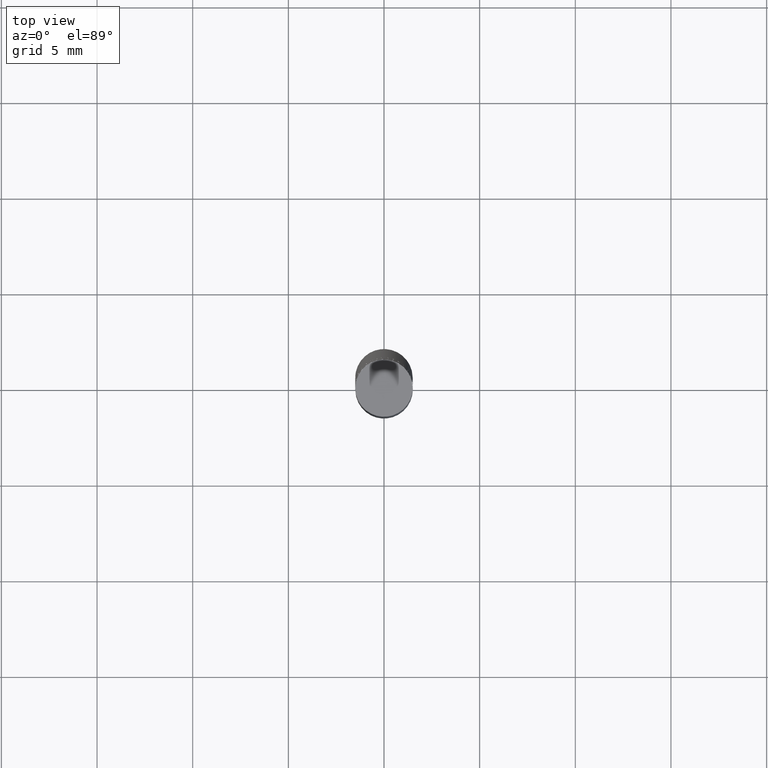
[diagram: clean part render]
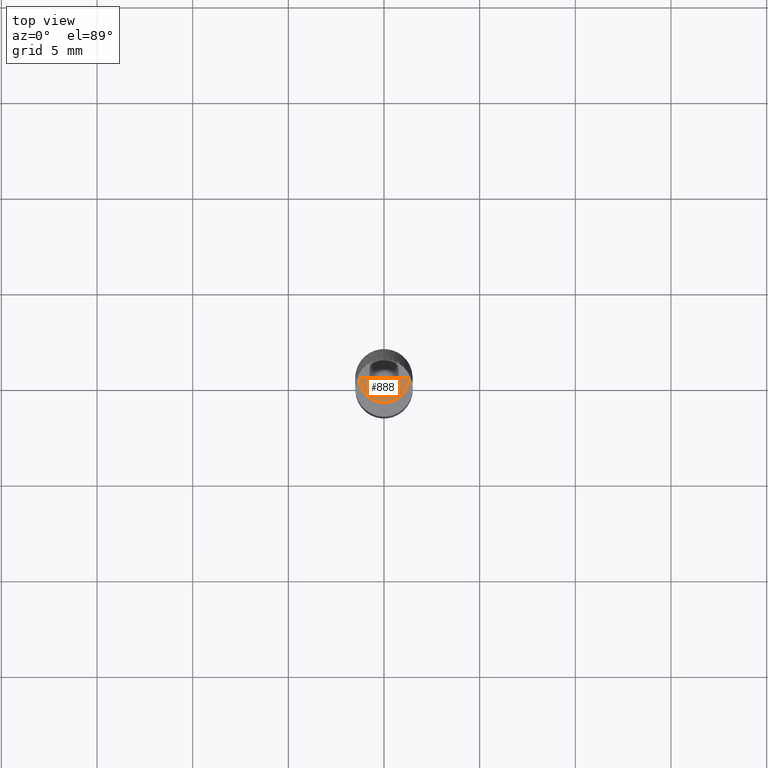
[diagram: same view with one face highlighted and labeled with its STEP entity id]
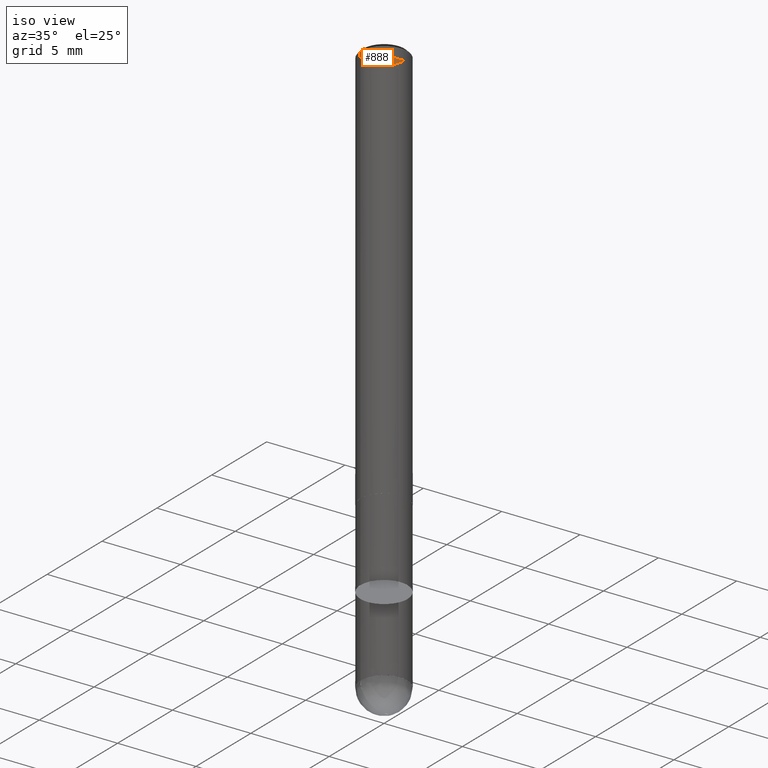
[diagram: same view with one face highlighted and labeled with its STEP entity id]
A machine part, top view. The second image highlights one B-rep face of the part: STEP entity #888.
A second angle (iso view) of the same face is appended — the face is thin or edge-on in the first view.
In plain terms, the highlighted face is a freeform B-spline surface patch.
Its self-contained STEP definition (entity closure, byte-faithful):
#576=CARTESIAN_POINT('',(1.3,0.0,26.0));
#580=CARTESIAN_POINT('',(-1.3,0.0,26.0));
#581=CARTESIAN_POINT('',(0.0,0.0,26.0));
#588=CARTESIAN_POINT('',(-1.3,-1.3,26.0));
#589=CARTESIAN_POINT('',(0.0,-1.3,26.0));
#590=CARTESIAN_POINT('',(1.3,-1.3,26.0));
#873=(
BOUNDED_SURFACE()
B_SPLINE_SURFACE(1,2,(
(#580,#588,#589,#590,#576),
(#581,#581,#581,#581,#581)
), .UNSPECIFIED.,.F.,.F.,.F.)
B_SPLINE_SURFACE_WITH_KNOTS((2,2),(3,2,3),(
0.0,1.0),(
0.0,0.5,1.0), .UNSPECIFIED.)
GEOMETRIC_REPRESENTATION_ITEM()
RATIONAL_B_SPLINE_SURFACE(((1.0,0.707106781187,1.0,0.707106781187,1.0),
(1.0,0.707106781187,1.0,0.707106781187,1.0)
))
REPRESENTATION_ITEM('')
SURFACE()
);
#874=(
BOUNDED_CURVE()
B_SPLINE_CURVE(2,(#576,#590,#589,#588,#580),.UNSPECIFIED.,.F.,.F.)
B_SPLINE_CURVE_WITH_KNOTS((3,2,3),
(0.0,0.5,1.0),.UNSPECIFIED.)
CURVE()
GEOMETRIC_REPRESENTATION_ITEM()
RATIONAL_B_SPLINE_CURVE((1.0,0.707106781187,1.0,0.707106781187,1.0))
REPRESENTATION_ITEM('')
);
#875=(
BOUNDED_CURVE()
B_SPLINE_CURVE(1,(#580,#581),.UNSPECIFIED.,.F.,.F.)
B_SPLINE_CURVE_WITH_KNOTS((2,2),
(0.0,1.0),.UNSPECIFIED.)
CURVE()
GEOMETRIC_REPRESENTATION_ITEM()
RATIONAL_B_SPLINE_CURVE((1.0,1.0))
REPRESENTATION_ITEM('')
);
#876=(
BOUNDED_CURVE()
B_SPLINE_CURVE(1,(#581,#576),.UNSPECIFIED.,.F.,.F.)
B_SPLINE_CURVE_WITH_KNOTS((2,2),
(0.0,1.0),.UNSPECIFIED.)
CURVE()
GEOMETRIC_REPRESENTATION_ITEM()
RATIONAL_B_SPLINE_CURVE((1.0,1.0))
REPRESENTATION_ITEM('')
);
#877=VERTEX_POINT('',#576);
#878=VERTEX_POINT('',#580);
#879=VERTEX_POINT('',#581);
#880=EDGE_CURVE('',#877,#878,#874,.T.);
#881=EDGE_CURVE('',#878,#879,#875,.T.);
#882=EDGE_CURVE('',#879,#877,#876,.T.);
#883=ORIENTED_EDGE('',*,*,#880,.T.);
#884=ORIENTED_EDGE('',*,*,#881,.T.);
#885=ORIENTED_EDGE('',*,*,#882,.T.);
#886=EDGE_LOOP('',(#883,#884,#885));
#887=FACE_OUTER_BOUND('',#886,.T.);
#888=ADVANCED_FACE('',(#887),#873,.T.);